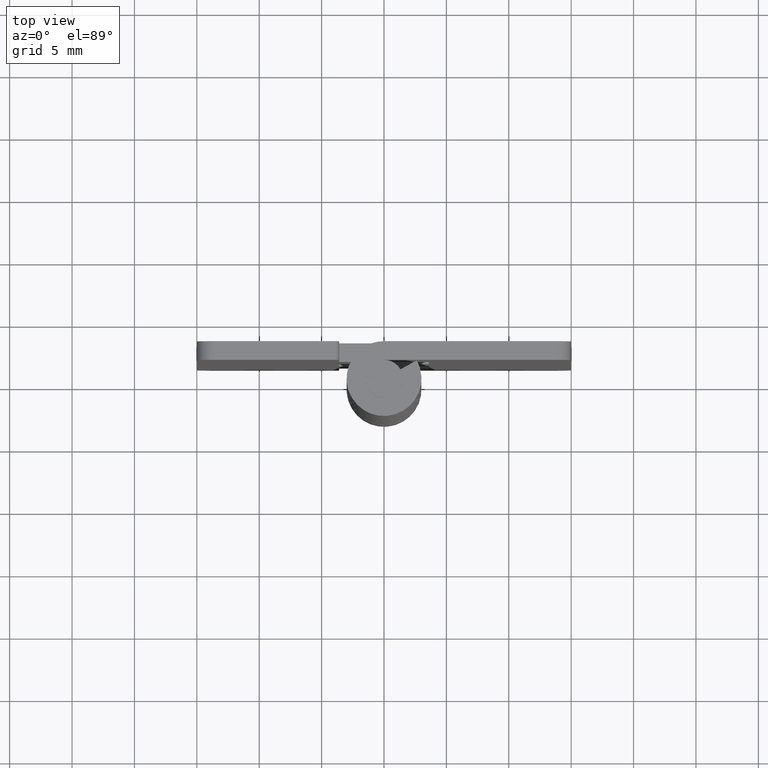
[diagram: clean part render]
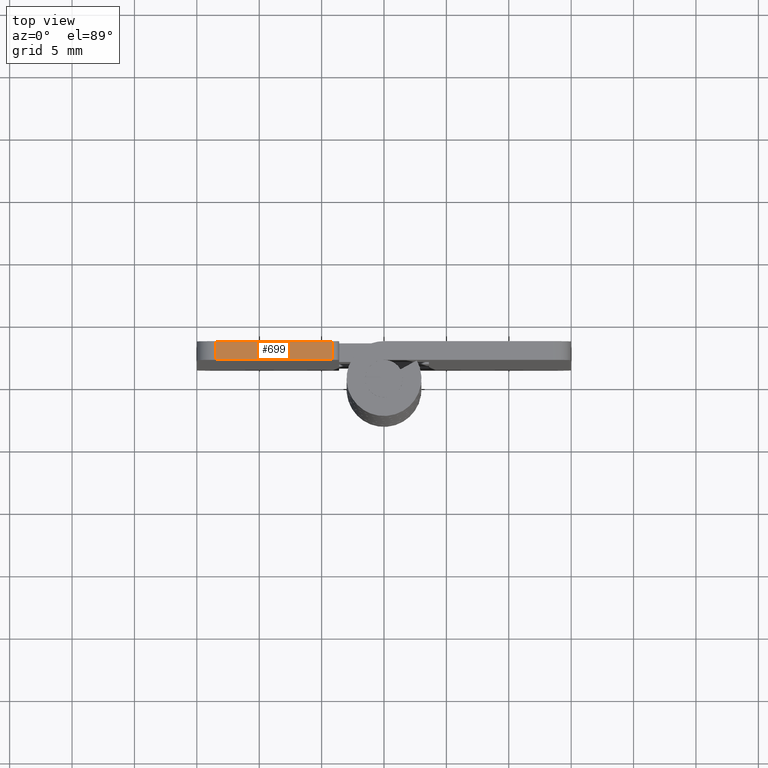
[diagram: same view with one face highlighted and labeled with its STEP entity id]
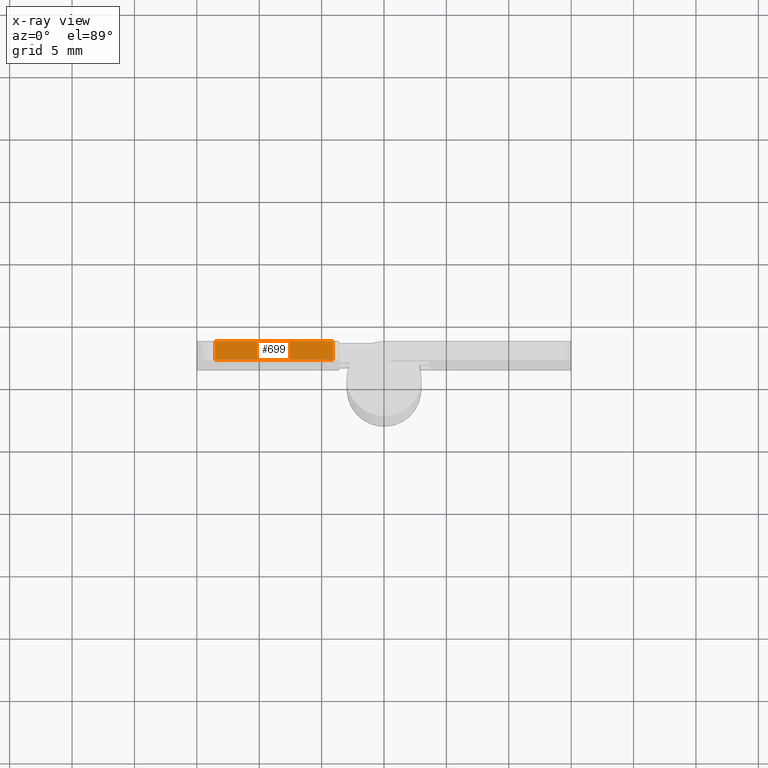
[diagram: x-ray of the same camera — body ghosted, the highlighted face saturated]
A machine part, top view. The second image highlights one B-rep face of the part: STEP entity #699.
The next image is the same camera in x-ray: the body ghosted, the highlighted face saturated — about 0% of this face is hidden behind the body in this view.
In plain terms, the highlighted face is a freeform B-spline surface patch.
Its self-contained STEP definition (entity closure, byte-faithful):
#60=CARTESIAN_POINT('',(-4.099997999999999,1.500000000000000,50.0));
#61=VERTEX_POINT('',#60);
#82=CARTESIAN_POINT('',(-4.099997999999999,3.0,50.0));
#83=VERTEX_POINT('',#82);
#97=CARTESIAN_POINT('',(-4.099997999999999,1.500000000000000,50.0));
#98=CARTESIAN_POINT('',(-4.099997999999999,3.0,50.0));
#99=QUASI_UNIFORM_CURVE('',1,(#97,#98),.UNSPECIFIED.,.F.,.U.);
#100=EDGE_CURVE('',#61,#83,#99,.T.);
#180=CARTESIAN_POINT('',(-13.500000000000000,1.500000000000000,50.0));
#181=VERTEX_POINT('',#180);
#197=CARTESIAN_POINT('',(-13.500000000000000,3.0,50.0));
#198=VERTEX_POINT('',#197);
#199=CARTESIAN_POINT('',(-13.500000000000000,3.0,50.0));
#200=CARTESIAN_POINT('',(-13.500000000000000,1.500000000000000,50.0));
#201=QUASI_UNIFORM_CURVE('',1,(#199,#200),.UNSPECIFIED.,.F.,.U.);
#202=EDGE_CURVE('',#198,#181,#201,.T.);
#680=CARTESIAN_POINT('',(-13.969530081680970,1.425075002907291,50.0));
#681=CARTESIAN_POINT('',(-3.630467666191326,1.425075002907291,50.0));
#682=CARTESIAN_POINT('',(-13.969530081680970,3.074925037325845,50.0));
#683=CARTESIAN_POINT('',(-3.630467666191326,3.074925037325845,50.0));
#684=B_SPLINE_SURFACE_WITH_KNOTS('',1,1,((#680,#682),(#681,#683)),.UNSPECIFIED.,.F.,.F.,.U.,(2,2),(2,2),(0.0,10.339062415489650),(0.041708334948495,0.958291687403247),.UNSPECIFIED.);
#685=CARTESIAN_POINT('',(-4.099997999999999,1.500000000000000,50.0));
#686=CARTESIAN_POINT('',(-13.500000000000000,1.500000000000000,50.0));
#687=QUASI_UNIFORM_CURVE('',1,(#685,#686),.UNSPECIFIED.,.F.,.U.);
#688=EDGE_CURVE('',#61,#181,#687,.T.);
#689=ORIENTED_EDGE('',*,*,#688,.F.);
#690=ORIENTED_EDGE('',*,*,#100,.T.);
#691=CARTESIAN_POINT('',(-13.500000000000000,3.0,50.0));
#692=CARTESIAN_POINT('',(-4.099997999999999,3.0,50.0));
#693=QUASI_UNIFORM_CURVE('',1,(#691,#692),.UNSPECIFIED.,.F.,.U.);
#694=EDGE_CURVE('',#198,#83,#693,.T.);
#695=ORIENTED_EDGE('',*,*,#694,.F.);
#696=ORIENTED_EDGE('',*,*,#202,.T.);
#697=EDGE_LOOP('',(#689,#690,#695,#696));
#698=FACE_OUTER_BOUND('',#697,.T.);
#699=ADVANCED_FACE('',(#698),#684,.T.);